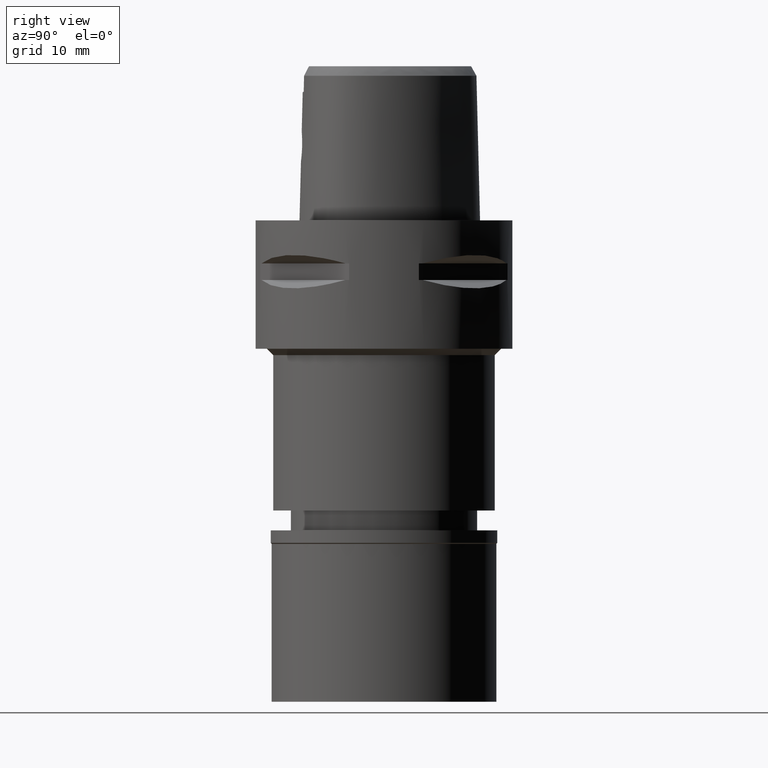
[diagram: clean part render]
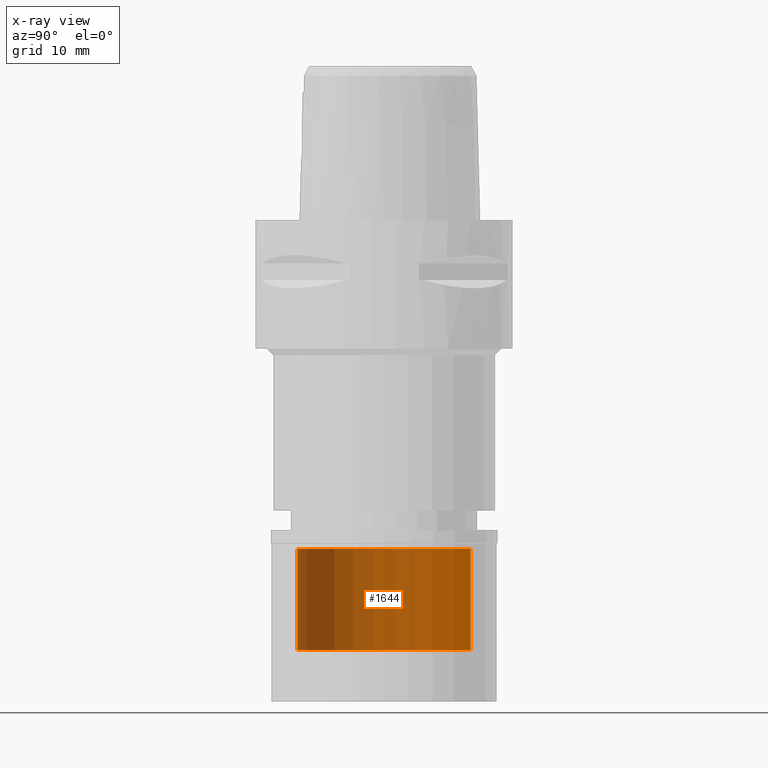
[diagram: x-ray — body ghosted, one internal face saturated and labeled with its STEP entity id]
A machine part, right view, then the same camera in x-ray: the body is ghosted and one INTERNAL B-rep face — a face not visible from any outside direction — is saturated and labeled: STEP entity #1644.
In plain terms, the highlighted cylindrical surface (partial cylindrical patch) has radius 13.5 mm, axis along (0, 0, -1).
Its self-contained STEP definition (entity closure, byte-faithful):
#26 = VERTEX_POINT ( 'NONE', #3745 ) ;
#128 = AXIS2_PLACEMENT_3D ( 'NONE', #2670, #3842, #2747 ) ;
#366 = CARTESIAN_POINT ( 'NONE',  ( 0.0000000000000000000, 0.0000000000000000000, 0.0000000000000000000 ) ) ;
#406 = CARTESIAN_POINT ( 'NONE',  ( 0.0000000000000000000, -13.50000000000000000, -18.70000000000000284 ) ) ;
#570 = VECTOR ( 'NONE', #3327, 1000.000000000000000 ) ;
#576 = VECTOR ( 'NONE', #4295, 1000.000000000000000 ) ;
#604 = LINE ( 'NONE', #3943, #576 ) ;
#721 = CYLINDRICAL_SURFACE ( 'NONE', #2315, 13.50000000000000000 ) ;
#900 = VERTEX_POINT ( 'NONE', #3573 ) ;
#921 = EDGE_CURVE ( 'NONE', #3951, #1981, #3759, .T. ) ;
#1144 = CIRCLE ( 'NONE', #2984, 13.50000000000000000 ) ;
#1322 = EDGE_CURVE ( 'NONE', #900, #26, #604, .T. ) ;
#1414 = EDGE_LOOP ( 'NONE', ( #3189, #2832, #3367, #3134 ) ) ;
#1457 = DIRECTION ( 'NONE',  ( 0.0000000000000000000, 0.0000000000000000000, -1.000000000000000000 ) ) ;
#1471 = CARTESIAN_POINT ( 'NONE',  ( 0.0000000000000000000, -13.50000000000000000, -18.70000000000000284 ) ) ;
#1644 = ADVANCED_FACE ( 'NONE', ( #4691 ), #721, .F. ) ;
#1652 = CARTESIAN_POINT ( 'NONE',  ( 0.0000000000000000000, -13.50000000000000000, -2.899999999999999911 ) ) ;
#1981 = VERTEX_POINT ( 'NONE', #1652 ) ;
#2145 = DIRECTION ( 'NONE',  ( 0.0000000000000000000, 0.0000000000000000000, -1.000000000000000000 ) ) ;
#2192 = CIRCLE ( 'NONE', #128, 13.50000000000000000 ) ;
#2315 = AXIS2_PLACEMENT_3D ( 'NONE', #366, #2145, #4338 ) ;
#2670 = CARTESIAN_POINT ( 'NONE',  ( 0.0000000000000000000, 0.0000000000000000000, -2.899999999999999911 ) ) ;
#2747 = DIRECTION ( 'NONE',  ( 0.0000000000000000000, 1.000000000000000000, 0.0000000000000000000 ) ) ;
#2832 = ORIENTED_EDGE ( 'NONE', *, *, #921, .F. ) ;
#2984 = AXIS2_PLACEMENT_3D ( 'NONE', #3329, #1457, #3045 ) ;
#3045 = DIRECTION ( 'NONE',  ( 0.0000000000000000000, -1.000000000000000000, 0.0000000000000000000 ) ) ;
#3134 = ORIENTED_EDGE ( 'NONE', *, *, #1322, .T. ) ;
#3189 = ORIENTED_EDGE ( 'NONE', *, *, #3608, .T. ) ;
#3327 = DIRECTION ( 'NONE',  ( 0.0000000000000000000, 0.0000000000000000000, 1.000000000000000000 ) ) ;
#3329 = CARTESIAN_POINT ( 'NONE',  ( 0.0000000000000000000, 0.0000000000000000000, -18.70000000000000284 ) ) ;
#3367 = ORIENTED_EDGE ( 'NONE', *, *, #4513, .T. ) ;
#3573 = CARTESIAN_POINT ( 'NONE',  ( 0.0000000000000000000, 13.50000000000000000, -18.70000000000000284 ) ) ;
#3608 = EDGE_CURVE ( 'NONE', #26, #1981, #2192, .T. ) ;
#3745 = CARTESIAN_POINT ( 'NONE',  ( 0.0000000000000000000, 13.50000000000000000, -2.899999999999999911 ) ) ;
#3759 = LINE ( 'NONE', #406, #570 ) ;
#3842 = DIRECTION ( 'NONE',  ( 0.0000000000000000000, 0.0000000000000000000, 1.000000000000000000 ) ) ;
#3943 = CARTESIAN_POINT ( 'NONE',  ( 0.0000000000000000000, 13.50000000000000000, -18.70000000000000284 ) ) ;
#3951 = VERTEX_POINT ( 'NONE', #1471 ) ;
#4295 = DIRECTION ( 'NONE',  ( 0.0000000000000000000, 0.0000000000000000000, 1.000000000000000000 ) ) ;
#4338 = DIRECTION ( 'NONE',  ( 0.0000000000000000000, -1.000000000000000000, 0.0000000000000000000 ) ) ;
#4513 = EDGE_CURVE ( 'NONE', #3951, #900, #1144, .T. ) ;
#4691 = FACE_OUTER_BOUND ( 'NONE', #1414, .T. ) ;